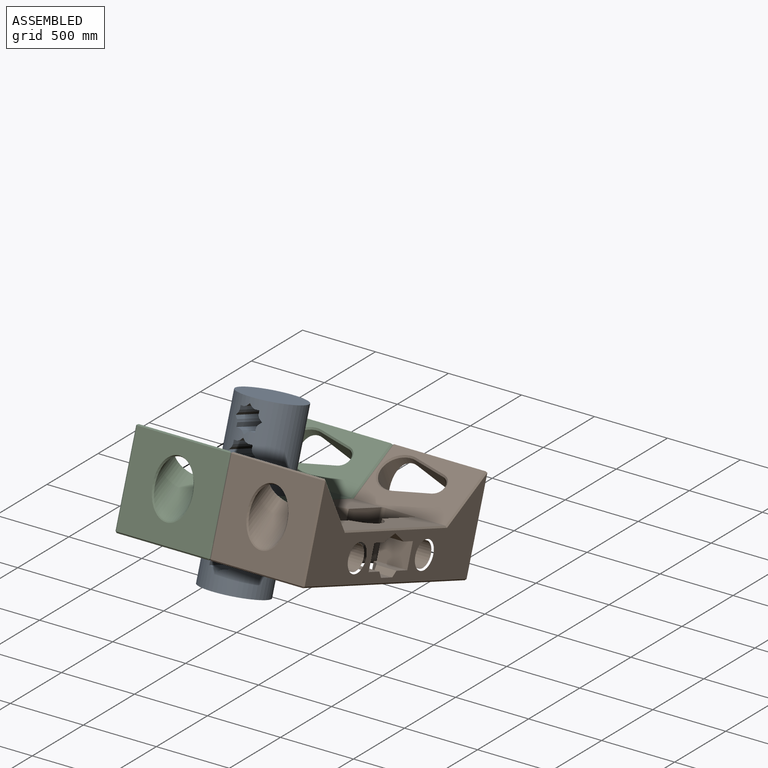
[diagram: assembled view]
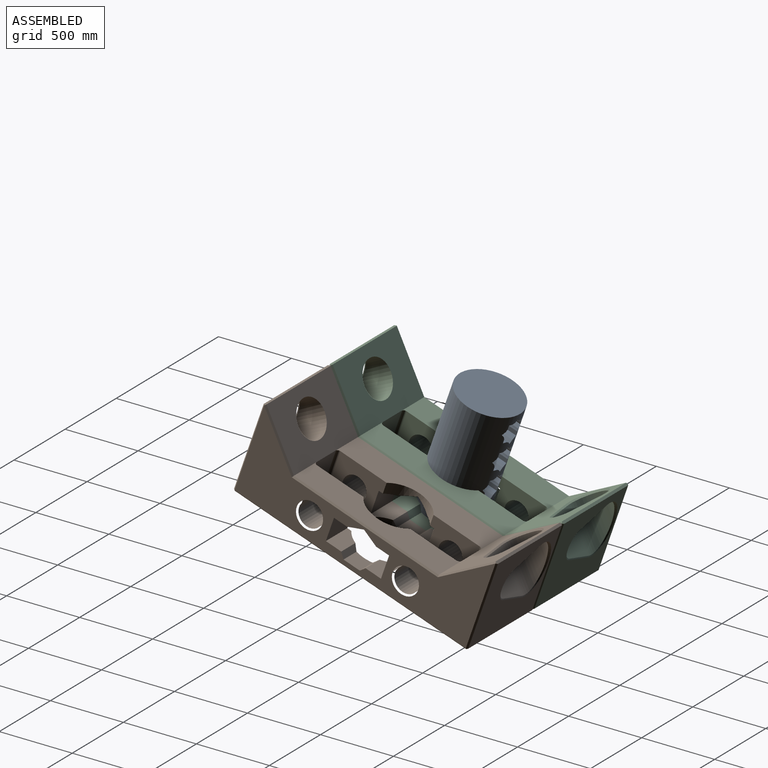
[diagram: assembled view, second angle]
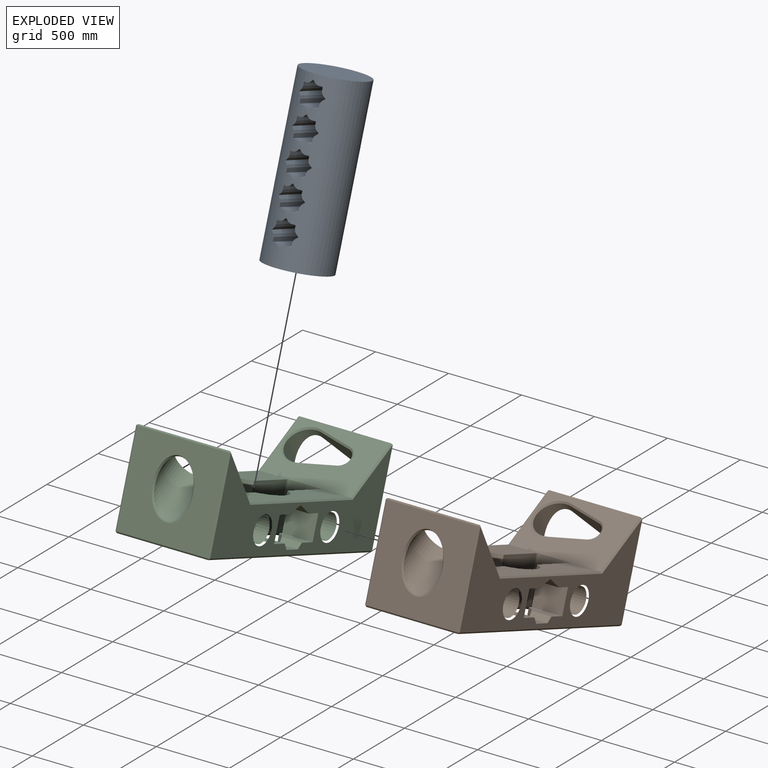
[diagram: exploded view]
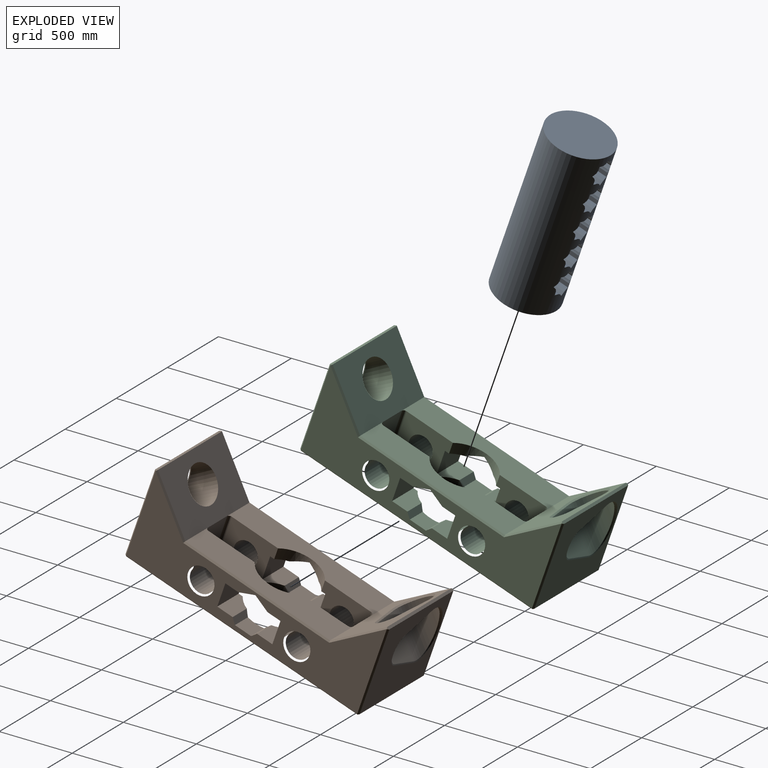
[diagram: exploded view, second angle]
ASSEMBLY  parts=3 mates=2
PART A: 123 faces, bbox 1127.2x435.2x435.2 mm
  f0: cylinder r=217.6mm len=1127.18mm, axis (-1,0,0), area 1342868.2mm2, adj f1,f2,f3,f4,f5,f6,f7,f8
  f1: cylinder r=73.36mm len=415.96mm, axis (0,1,0), area 7187.8mm2, adj f0,f76,f122
  f2: cylinder r=73.36mm len=433.38mm, axis (0,1,0), area 7497.8mm2, adj f0,f80,f119
  f3: cylinder r=73.36mm len=433.38mm, axis (0,1,0), area 7497.8mm2, adj f0,f77,f118
  f4: cylinder r=73.36mm len=415.96mm, axis (0,1,0), area 7187.8mm2, adj f0,f68,f116
  f5: cylinder r=73.36mm len=433.38mm, axis (0,1,0), area 7497.8mm2, adj f0,f72,f113
  f6: cylinder r=73.36mm len=433.38mm, axis (0,1,0), area 7497.8mm2, adj f0,f69,f112
  f7: cylinder r=73.36mm len=415.96mm, axis (0,1,0), area 7187.8mm2, adj f0,f60,f110
  f8: cylinder r=73.36mm len=433.38mm, axis (0,1,0), area 7497.8mm2, adj f0,f64,f107
  f9: cylinder r=73.36mm len=433.38mm, axis (0,1,0), area 7497.8mm2, adj f0,f61,f106
  f10: cylinder r=73.36mm len=415.96mm, axis (0,1,0), area 7187.8mm2, adj f0,f52,f104
  f11: cylinder r=73.36mm len=433.38mm, axis (0,1,0), area 7497.8mm2, adj f0,f56,f101
  f12: cylinder r=73.36mm len=433.38mm, axis (0,1,0), area 7497.8mm2, adj f0,f53,f100
  f13: cylinder r=73.36mm len=415.96mm, axis (0,1,0), area 7187.8mm2, adj f0,f49,f97
  f14: cylinder r=73.36mm len=433.38mm, axis (0,1,0), area 7497.8mm2, adj f0,f48,f95
  f15: cylinder r=73.36mm len=433.38mm, axis (0,1,0), area 7497.8mm2, adj f0,f45,f94
  f16: cylinder r=73.36mm len=415.96mm, axis (0,1,0), area 7187.6mm2, adj f0,f78,f92
  f17: cylinder r=73.36mm len=415.96mm, axis (0,1,0), area 7187.9mm2, adj f0,f79,f91
  f18: cylinder r=73.36mm len=415.96mm, axis (0,1,0), area 7187.6mm2, adj f0,f70,f90
  f19: cylinder r=73.36mm len=415.96mm, axis (0,1,0), area 7187.9mm2, adj f0,f71,f89
  f20: cylinder r=73.36mm len=415.96mm, axis (0,1,0), area 7187.6mm2, adj f0,f62,f88
  f21: cylinder r=73.36mm len=415.96mm, axis (0,1,0), area 7187.9mm2, adj f0,f63,f87
  f22: cylinder r=73.36mm len=415.96mm, axis (0,1,0), area 7187.6mm2, adj f0,f54,f86
  f23: cylinder r=73.36mm len=415.96mm, axis (0,1,0), area 7187.9mm2, adj f0,f55,f85
  f24: cylinder r=73.36mm len=415.96mm, axis (0,1,0), area 7187.9mm2, adj f0,f47,f84
  f25: cylinder r=73.36mm len=415.96mm, axis (0,1,0), area 7187.6mm2, adj f0,f46,f83
  f26: cylinder r=73.36mm len=415.96mm, axis (0,1,0), area 7187.8mm2, adj f0,f81,f121
  f27: cylinder r=73.36mm len=433.38mm, axis (0,1,0), area 7498mm2, adj f0,f82,f120
  f28: cylinder r=73.36mm len=433.38mm, axis (0,1,0), area 7497.7mm2, adj f0,f75,f117
  f29: cylinder r=73.36mm len=415.96mm, axis (0,1,0), area 7187.8mm2, adj f0,f73,f115
  f30: cylinder r=73.36mm len=433.38mm, axis (0,1,0), area 7498mm2, adj f0,f74,f114
  f31: cylinder r=73.36mm len=433.38mm, axis (0,1,0), area 7497.7mm2, adj f0,f67,f111
  f32: cylinder r=73.36mm len=415.96mm, axis (0,1,0), area 7187.8mm2, adj f0,f65,f109
  f33: cylinder r=73.36mm len=433.38mm, axis (0,1,0), area 7498mm2, adj f0,f66,f108
  f34: cylinder r=73.36mm len=433.38mm, axis (0,1,0), area 7497.7mm2, adj f0,f59,f105
  f35: cylinder r=73.36mm len=415.96mm, axis (0,1,0), area 7187.8mm2, adj f0,f57,f103
  f36: cylinder r=73.36mm len=433.38mm, axis (0,1,0), area 7498mm2, adj f0,f58,f102
  f37: cylinder r=73.36mm len=433.38mm, axis (0,1,0), area 7497.7mm2, adj f0,f51,f99
  f38: cylinder r=73.36mm len=415.96mm, axis (0,1,0), area 7187.8mm2, adj f0,f44,f98
  f39: cylinder r=73.36mm len=433.38mm, axis (0,1,0), area 7498mm2, adj f0,f50,f96
  f40: cylinder r=73.36mm len=433.38mm, axis (0,1,0), area 7497.7mm2, adj f0,f43,f93
  f41: plane 435.19x435.19mm, normal (1,0,0), area 148749.9mm2, adj f0
  f42: plane 435.19x435.19mm, normal (-1,0,0), area 148749.9mm2, adj f0
  f43: plane 429.24x28.1mm, normal (-1,0,0), area 11891.7mm2, adj f0,f40,f44
  f44: plane 415.96x28.1mm, normal (0,0,1), area 11686.7mm2, adj f0,f38,f43
  f45: plane 429.24x28.1mm, normal (-1,0,0), area 11891.7mm2, adj f0,f15,f46
  f46: plane 415.96x28.1mm, normal (0,0,-1), area 11686.7mm2, adj f0,f25,f45
  f47: plane 415.96x28.1mm, normal (0,0,-1), area 11686.7mm2, adj f0,f24,f48
  f48: plane 429.24x28.1mm, normal (1,0,0), area 11891.7mm2, adj f0,f14,f47
  f49: plane 415.96x28.1mm, normal (0,0,1), area 11686.7mm2, adj f0,f13,f50
  f50: plane 429.24x28.1mm, normal (1,0,0), area 11891.7mm2, adj f0,f39,f49
  f51: plane 429.24x28.1mm, normal (-1,0,0), area 11891.7mm2, adj f0,f37,f52
  f52: plane 415.96x28.1mm, normal (0,0,1), area 11686.7mm2, adj f0,f10,f51
  f53: plane 429.24x28.1mm, normal (-1,0,0), area 11891.7mm2, adj f0,f12,f54
  f54: plane 415.96x28.1mm, normal (0,0,-1), area 11686.7mm2, adj f0,f22,f53
  f55: plane 415.96x28.1mm, normal (0,0,-1), area 11686.7mm2, adj f0,f23,f56
  f56: plane 429.24x28.1mm, normal (1,0,0), area 11891.7mm2, adj f0,f11,f55
  f57: plane 415.96x28.1mm, normal (0,0,1), area 11686.7mm2, adj f0,f35,f58
  f58: plane 429.24x28.1mm, normal (1,0,0), area 11891.7mm2, adj f0,f36,f57
  f59: plane 429.24x28.1mm, normal (-1,0,0), area 11891.7mm2, adj f0,f34,f60
  f60: plane 415.96x28.1mm, normal (0,0,1), area 11686.7mm2, adj f0,f7,f59
  f61: plane 429.24x28.1mm, normal (-1,0,0), area 11891.7mm2, adj f0,f9,f62
  f62: plane 415.96x28.1mm, normal (0,0,-1), area 11686.7mm2, adj f0,f20,f61
  f63: plane 415.96x28.1mm, normal (0,0,-1), area 11686.7mm2, adj f0,f21,f64
  f64: plane 429.24x28.1mm, normal (1,0,0), area 11891.7mm2, adj f0,f8,f63
  f65: plane 415.96x28.1mm, normal (0,0,1), area 11686.7mm2, adj f0,f32,f66
  f66: plane 429.24x28.1mm, normal (1,0,0), area 11891.7mm2, adj f0,f33,f65
  f67: plane 429.24x28.1mm, normal (-1,0,0), area 11891.7mm2, adj f0,f31,f68
  f68: plane 415.96x28.1mm, normal (0,0,1), area 11686.7mm2, adj f0,f4,f67
  f69: plane 429.24x28.1mm, normal (-1,0,0), area 11891.7mm2, adj f0,f6,f70
  f70: plane 415.96x28.1mm, normal (0,0,-1), area 11686.7mm2, adj f0,f18,f69
  f71: plane 415.96x28.1mm, normal (0,0,-1), area 11686.7mm2, adj f0,f19,f72
  f72: plane 429.24x28.1mm, normal (1,0,0), area 11891.7mm2, adj f0,f5,f71
  f73: plane 415.96x28.1mm, normal (0,0,1), area 11686.7mm2, adj f0,f29,f74
  f74: plane 429.24x28.1mm, normal (1,0,0), area 11891.7mm2, adj f0,f30,f73
  f75: plane 429.24x28.1mm, normal (-1,0,0), area 11891.7mm2, adj f0,f28,f76
  f76: plane 415.96x28.1mm, normal (0,0,1), area 11686.7mm2, adj f0,f1,f75
  f77: plane 429.24x28.1mm, normal (-1,0,0), area 11891.7mm2, adj f0,f3,f78
  f78: plane 415.96x28.1mm, normal (0,0,-1), area 11686.7mm2, adj f0,f16,f77
  f79: plane 415.96x28.1mm, normal (0,0,-1), area 11686.7mm2, adj f0,f17,f80
  f80: plane 429.24x28.1mm, normal (1,0,0), area 11891.7mm2, adj f0,f2,f79
  f81: plane 415.96x28.1mm, normal (0,0,1), area 11686.7mm2, adj f0,f26,f82
  f82: plane 429.24x28.1mm, normal (1,0,0), area 11891.7mm2, adj f0,f27,f81
  f83: plane 411.64x19.87mm, normal (-0.71,0,-0.71), area 11353.4mm2, adj f0,f25,f84
  f84: plane 411.64x19.87mm, normal (0.71,0,-0.71), area 11353.3mm2, adj f0,f24,f83
  f85: plane 411.64x19.87mm, normal (0.71,0,-0.71), area 11353.3mm2, adj f0,f23,f86
  f86: plane 411.64x19.87mm, normal (-0.71,0,-0.71), area 11353.4mm2, adj f0,f22,f85
  f87: plane 411.64x19.87mm, normal (0.71,0,-0.71), area 11353.3mm2, adj f0,f21,f88
  f88: plane 411.64x19.87mm, normal (-0.71,0,-0.71), area 11353.4mm2, adj f0,f20,f87
  f89: plane 411.64x19.87mm, normal (0.71,0,-0.71), area 11353.3mm2, adj f0,f19,f90
  f90: plane 411.64x19.87mm, normal (-0.71,0,-0.71), area 11353.4mm2, adj f0,f18,f89
  f91: plane 411.64x19.87mm, normal (0.71,0,-0.71), area 11353.3mm2, adj f0,f17,f92
  f92: plane 411.64x19.87mm, normal (-0.71,0,-0.71), area 11353.4mm2, adj f0,f16,f91
  f93: plane 435.19x19.87mm, normal (-0.71,0,0.71), area 12210.2mm2, adj f0,f40,f94
  f94: plane 435.19x19.87mm, normal (-0.71,0,-0.71), area 12210.3mm2, adj f0,f15,f93
  f95: plane 435.19x19.87mm, normal (0.71,0,-0.71), area 12210.1mm2, adj f0,f14,f96
  f96: plane 435.19x19.87mm, normal (0.71,0,0.71), area 12210.1mm2, adj f0,f39,f95
  f97: plane 411.64x19.87mm, normal (0.71,0,0.71), area 11353.2mm2, adj f0,f13,f98
  f98: plane 411.64x19.87mm, normal (-0.71,0,0.71), area 11353.3mm2, adj f0,f38,f97
  f99: plane 435.19x19.87mm, normal (-0.71,0,0.71), area 12210.2mm2, adj f0,f37,f100
  f100: plane 435.19x19.87mm, normal (-0.71,0,-0.71), area 12210.3mm2, adj f0,f12,f99
  f101: plane 435.19x19.87mm, normal (0.71,0,-0.71), area 12210.1mm2, adj f0,f11,f102
  f102: plane 435.19x19.87mm, normal (0.71,0,0.71), area 12210.1mm2, adj f0,f36,f101
  f103: plane 411.64x19.87mm, normal (0.71,0,0.71), area 11353.2mm2, adj f0,f35,f104
  f104: plane 411.64x19.87mm, normal (-0.71,0,0.71), area 11353.3mm2, adj f0,f10,f103
  f105: plane 435.19x19.87mm, normal (-0.71,0,0.71), area 12210.2mm2, adj f0,f34,f106
  f106: plane 435.19x19.87mm, normal (-0.71,0,-0.71), area 12210.3mm2, adj f0,f9,f105
  f107: plane 435.19x19.87mm, normal (0.71,0,-0.71), area 12210.1mm2, adj f0,f8,f108
  f108: plane 435.19x19.87mm, normal (0.71,0,0.71), area 12210.1mm2, adj f0,f33,f107
  f109: plane 411.64x19.87mm, normal (0.71,0,0.71), area 11353.2mm2, adj f0,f32,f110
  f110: plane 411.64x19.87mm, normal (-0.71,0,0.71), area 11353.3mm2, adj f0,f7,f109
  f111: plane 435.19x19.87mm, normal (-0.71,0,0.71), area 12210.2mm2, adj f0,f31,f112
  f112: plane 435.19x19.87mm, normal (-0.71,0,-0.71), area 12210.3mm2, adj f0,f6,f111
  f113: plane 435.19x19.87mm, normal (0.71,0,-0.71), area 12210.1mm2, adj f0,f5,f114
  f114: plane 435.19x19.87mm, normal (0.71,0,0.71), area 12210.1mm2, adj f0,f30,f113
  f115: plane 411.64x19.87mm, normal (0.71,0,0.71), area 11353.2mm2, adj f0,f29,f116
  f116: plane 411.64x19.87mm, normal (-0.71,0,0.71), area 11353.3mm2, adj f0,f4,f115
  f117: plane 435.19x19.87mm, normal (-0.71,0,0.71), area 12210.2mm2, adj f0,f28,f118
  f118: plane 435.19x19.87mm, normal (-0.71,0,-0.71), area 12210.3mm2, adj f0,f3,f117
  f119: plane 435.19x19.87mm, normal (0.71,0,-0.71), area 12210.1mm2, adj f0,f2,f120
  f120: plane 435.19x19.87mm, normal (0.71,0,0.71), area 12210.1mm2, adj f0,f27,f119
  f121: plane 411.64x19.87mm, normal (0.71,0,0.71), area 11353.2mm2, adj f0,f26,f122
  f122: plane 411.64x19.87mm, normal (-0.71,0,0.71), area 11353.3mm2, adj f0,f1,f121
PART B: 103 faces, bbox 649.7x2052.9x632.6 mm
  f0: cylinder r=205.21mm len=340.87mm, axis (0,0,1), area 21602.9mm2, adj f1,f15,f34,f93,f94,f95,f96,f102
  f1: plane 335.26x313.85mm, normal (-1,0,0), area 78595.1mm2, adj f0,f6,f16,f22,f29,f32,f92,f96
  f2: plane 335.26x313.85mm, normal (1,0,0), area 78595.1mm2, adj f3,f12,f18,f21,f30,f39,f81,f89
  f3: cylinder r=205.21mm len=340.87mm, axis (0,0,1), area 21602.9mm2, adj f2,f19,f41,f81,f82,f83,f84,f90
  f4: plane 627.73x613.59mm, normal (0,1,0), area 255541.5mm2, adj f49,f50,f51,f52,f73,f74,f75,f76
  f5: plane 627.7x306.78mm, normal (0,-0.71,0.71), area 180694.5mm2, adj f6,f12,f17,f44,f45,f46,f47,f52
  f6: plane 1051.38x219.55mm, normal (0,0,1), area 188183mm2, adj f1,f5,f11,f15,f16,f28,f29,f62
  f7: plane 1679.08x613.56mm, normal (1,0,0), area 473543.5mm2, adj f49,f57,f58,f62,f66,f67,f77,f78
  f8: plane 1679.08x613.56mm, normal (-1,0,0), area 473543.5mm2, adj f51,f60,f61,f65,f68,f69,f79,f80
  f9: plane 1679.08x627.7mm, normal (0,0,-1), area 743592.4mm2, adj f32,f33,f34,f35,f36,f37,f38,f39
  f10: plane 627.72x613.58mm, normal (0,-1,0), area 301747.6mm2, adj f48,f59,f67,f68,f72
  f11: plane 627.7x306.78mm, normal (0,0.71,0.71), area 221657.5mm2, adj f6,f12,f13,f14,f66,f69,f72
  f12: plane 1051.38x219.55mm, normal (0,0,1), area 188183mm2, adj f2,f5,f11,f18,f19,f30,f31,f65
  f13: cylinder r=127mm len=428.42mm, axis (0,0.71,0.71), area 171202.5mm2, adj f11,f48
  f14: plane 313.85x188.6mm, normal (0,1,0), area 59192.1mm2, adj f11,f28,f31,f40
  f15: plane 335.26x313.85mm, normal (-1,0,0), area 78595.1mm2, adj f0,f6,f16,f23,f28,f36,f100,f101
  f16: cylinder r=205.21mm len=340.87mm, axis (0,0,1), area 25640.9mm2, adj f1,f6,f15,f97,f98,f99,f100
  f17: plane 313.85x188.6mm, normal (0,-1,0), area 59192.1mm2, adj f5,f29,f30,f35
  f18: cylinder r=205.21mm len=340.87mm, axis (0,0,1), area 25640.9mm2, adj f2,f12,f19,f86,f87,f88,f89
  f19: plane 335.26x313.85mm, normal (1,0,0), area 78595.1mm2, adj f3,f12,f18,f20,f31,f43,f84,f85
  f20: cylinder r=83.01mm len=199.55mm, axis (1,0,0), area 104079.4mm2, adj f19,f79
  f21: cylinder r=83.01mm len=199.55mm, axis (1,0,0), area 104079.4mm2, adj f2,f80
  f22: cylinder r=83.01mm len=199.55mm, axis (1,0,0), area 104079.4mm2, adj f1,f77
  f23: cylinder r=83.01mm len=199.55mm, axis (1,0,0), area 104079.4mm2, adj f15,f78
  f24: plane 227.99x113.32mm, normal (-0.24,-0.69,-0.69), area 17679.7mm2, adj f25,f27,f47,f76
  f25: cylinder r=125.91mm len=400.63mm, axis (0,-0.71,0.71), area 81778.1mm2, adj f24,f26,f45,f74
  f26: plane 259.78x227.99mm, normal (-0.24,0.69,0.69), area 66340.8mm2, adj f25,f27,f44,f73
  f27: cylinder r=67.53mm len=272.32mm, axis (0,-0.71,0.71), area 32052.4mm2, adj f24,f26,f46,f75
  f28: cylinder r=20mm len=313.85mm, axis (0,0,-1), area 9859.9mm2, adj f6,f14,f15,f38
  f29: cylinder r=20mm len=313.85mm, axis (0,0,1), area 9859.9mm2, adj f1,f6,f17,f33
  f30: cylinder r=20mm len=313.85mm, axis (0,0,-1), area 9859.9mm2, adj f2,f12,f17,f37
  f31: cylinder r=20mm len=313.85mm, axis (0,0,1), area 9859.9mm2, adj f12,f14,f19,f42
  f32: plane 335.35x10.1mm, normal (-0.71,0,-0.71), area 4703.9mm2, adj f1,f9,f33,f34
  f33: cone r=30mm half-angle=45deg, axis (0,0,-1), area 555.4mm2, adj f9,f29,f32,f35
  f34: cone r=205.21mm half-angle=45deg, axis (0,0,-1), area 5752.3mm2, adj f0,f9,f32,f36
  f35: plane 188.6x10mm, normal (0,-0.71,-0.71), area 2667.2mm2, adj f9,f17,f33,f37
  f36: plane 335.35x10.1mm, normal (-0.71,0,-0.71), area 4703.9mm2, adj f9,f15,f34,f38
  f37: cone r=30mm half-angle=45deg, axis (0,0,-1), area 555.4mm2, adj f9,f30,f35,f39
  f38: cone r=30mm half-angle=45deg, axis (0,0,-1), area 555.4mm2, adj f9,f28,f36,f40
  f39: plane 335.35x10.1mm, normal (0.71,0,-0.71), area 4703.9mm2, adj f2,f9,f37,f41
  f40: plane 188.6x10mm, normal (0,0.71,-0.71), area 2667.2mm2, adj f9,f14,f38,f42
  f41: cone r=205.21mm half-angle=45deg, axis (0,0,-1), area 5752.3mm2, adj f3,f9,f39,f43
  f42: cone r=30mm half-angle=45deg, axis (0,0,-1), area 555.4mm2, adj f9,f31,f40,f43
  f43: plane 335.35x10.1mm, normal (0.71,0,-0.71), area 4703.9mm2, adj f9,f19,f41,f42
  f44: plane 230.4x54mm, normal (-0.17,-0.01,0.99), area 3322.3mm2, adj f5,f26,f45,f46
  f45: cone r=125.91mm half-angle=45deg, axis (0,-0.71,0.71), area 6718.2mm2, adj f5,f25,f44,f47
  f46: cone r=67.53mm half-angle=45deg, axis (0,-0.71,0.71), area 2722.5mm2, adj f5,f27,f44,f47
  f47: plane 230.4x54mm, normal (-0.17,-0.99,0.01), area 3322.3mm2, adj f5,f24,f45,f46
  f48: bspline ~387.49x274mm, area 13962.2mm2, adj f10,f13
  f49: plane 613.56x10mm, normal (0.71,0.71,0), area 8677mm2, adj f4,f7,f53,f54
  f50: plane 627.7x10mm, normal (0,0.71,-0.71), area 8877mm2, adj f4,f9,f54,f55
  f51: plane 613.56x10mm, normal (-0.71,0.71,0), area 8677mm2, adj f4,f8,f55,f56
  f52: plane 627.7x17.07mm, normal (0,0.38,0.92), area 11598.4mm2, adj f4,f5,f53,f56
  f53: plane 17.07x10mm, normal (0.36,0.36,0.86), area 98.9mm2, adj f49,f52,f57
  f54: plane 10x10mm, normal (0.58,0.58,-0.58), area 86.6mm2, adj f49,f50,f58
  f55: plane 10x10mm, normal (-0.58,0.58,-0.58), area 86.6mm2, adj f50,f51,f60
  f56: plane 17.07x10mm, normal (-0.36,0.36,0.86), area 98.9mm2, adj f51,f52,f61
  f57: plane 316.78x313.85mm, normal (0.71,-0.5,0.5), area 6164.9mm2, adj f5,f7,f53,f62
  f58: plane 1679.08x10mm, normal (0.71,0,-0.71), area 23745.8mm2, adj f7,f9,f54,f63
  f59: plane 627.7x10mm, normal (0,-0.71,-0.71), area 8877mm2, adj f9,f10,f63,f64
  f60: plane 1679.08x10mm, normal (-0.71,0,-0.71), area 23745.8mm2, adj f8,f9,f55,f64
  f61: plane 316.78x313.85mm, normal (-0.71,-0.5,0.5), area 6164.9mm2, adj f5,f8,f56,f65
  f62: plane 1059.67x10mm, normal (0.71,0,0.71), area 14927.4mm2, adj f6,f7,f57,f66
  f63: plane 10x10mm, normal (0.58,-0.58,-0.58), area 86.6mm2, adj f58,f59,f67
  f64: plane 10x10mm, normal (-0.58,-0.58,-0.58), area 86.6mm2, adj f59,f60,f68
  f65: plane 1059.67x10mm, normal (-0.71,0,0.71), area 14927.4mm2, adj f8,f12,f61,f69
  f66: plane 316.78x313.85mm, normal (0.71,0.5,0.5), area 6164.9mm2, adj f7,f11,f62,f70
  f67: plane 613.56x10mm, normal (0.71,-0.71,0), area 8677mm2, adj f7,f10,f63,f70
  f68: plane 613.56x10mm, normal (-0.71,-0.71,0), area 8677mm2, adj f8,f10,f64,f71
  f69: plane 316.78x313.85mm, normal (-0.71,0.5,0.5), area 6164.9mm2, adj f8,f11,f65,f71
  f70: plane 17.07x10mm, normal (0.36,-0.36,0.86), area 98.9mm2, adj f66,f67,f72
  f71: plane 17.07x10mm, normal (-0.36,-0.36,0.86), area 98.9mm2, adj f68,f69,f72
  f72: plane 627.7x17.07mm, normal (0,-0.38,0.92), area 11598.4mm2, adj f10,f11,f70,f71
  f73: plane 230.4x87mm, normal (-0.13,0.92,0.37), area 1914.4mm2, adj f4,f26,f74,f75
  f74: bspline ~384.85x168.69mm, area 7767.9mm2, adj f4,f25,f73,f76
  f75: bspline ~212.8x61.24mm, area 3406.2mm2, adj f4,f27,f73,f76
  f76: plane 230.4x87mm, normal (-0.3,0.4,-0.87), area 4437.9mm2, adj f4,f24,f74,f75
  f77: cone r=83.01mm half-angle=45deg, axis (1,0,0), area 7820.4mm2, adj f7,f22
  f78: cone r=83.01mm half-angle=45deg, axis (1,0,0), area 7820.4mm2, adj f7,f23
  f79: cone r=93.01mm half-angle=45deg, axis (-1,0,0), area 7820.4mm2, adj f8,f20
  f80: cone r=93.01mm half-angle=45deg, axis (-1,0,0), area 7820.4mm2, adj f8,f21
  f81: plane 209.55x111.55mm, normal (0,0,1), area 19942.2mm2, adj f2,f3,f8,f82,f91
  f82: plane 139.24x38.02mm, normal (0,-0.78,0.62), area 6347.3mm2, adj f3,f8,f81,f83
  f83: plane 127.17x117.15mm, normal (0,0,1), area 14228.5mm2, adj f3,f8,f82,f90
  f84: plane 209.55x111.55mm, normal (0,0,1), area 19942.2mm2, adj f3,f8,f19,f85,f90
  f85: plane 209.55x168.34mm, normal (0,1,0), area 35276.1mm2, adj f8,f19,f84,f86
  f86: plane 209.55x94.45mm, normal (0,0,-1), area 17495.3mm2, adj f8,f18,f19,f85,f87
  f87: plane 149.82x107.51mm, normal (0,0.43,-0.9), area 15004.5mm2, adj f8,f18,f86,f88
  f88: plane 149.82x107.51mm, normal (0,-0.43,-0.9), area 15004.5mm2, adj f8,f18,f87,f89
  f89: plane 209.55x94.45mm, normal (0,0,-1), area 17495.3mm2, adj f2,f8,f18,f88,f91
  f90: plane 139.24x38.02mm, normal (0,0.78,0.62), area 6347.3mm2, adj f3,f8,f83,f84
  f91: plane 209.55x168.34mm, normal (0,-1,0), area 35276.1mm2, adj f2,f8,f81,f89
  f92: plane 209.55x168.34mm, normal (0,-1,0), area 35276.1mm2, adj f1,f7,f96,f97
  f93: plane 139.24x38.02mm, normal (0,0.78,0.62), area 6347.3mm2, adj f0,f7,f94,f102
  f94: plane 127.17x117.15mm, normal (0,0,1), area 14228.5mm2, adj f0,f7,f93,f95
  f95: plane 139.24x38.02mm, normal (0,-0.78,0.62), area 6347.3mm2, adj f0,f7,f94,f96
  f96: plane 209.55x111.55mm, normal (0,0,1), area 19942.2mm2, adj f0,f1,f7,f92,f95
  f97: plane 209.55x94.45mm, normal (0,0,-1), area 17495.3mm2, adj f1,f7,f16,f92,f98
  f98: plane 149.82x107.51mm, normal (0,-0.43,-0.9), area 15004.5mm2, adj f7,f16,f97,f99
  f99: plane 149.82x107.51mm, normal (0,0.43,-0.9), area 15004.5mm2, adj f7,f16,f98,f100
  f100: plane 209.55x94.45mm, normal (0,0,-1), area 17495.3mm2, adj f7,f15,f16,f99,f101
  f101: plane 209.55x168.34mm, normal (0,1,0), area 35276.1mm2, adj f7,f15,f100,f102
  f102: plane 209.55x111.55mm, normal (0,0,1), area 19942.2mm2, adj f0,f7,f15,f93,f101
PART C: same geometry as B
PLACE A rot(axis=(0.7,-0.12,-0.7),166.4deg) t=(352.86,-712.81,718.25)mm
PLACE B rot(axis=(-1,0,0),19.3deg) t=(453.31,-120.39,-388.85)mm
PLACE C rot(axis=(-1,0,0),19.3deg) t=(-194.39,-120.39,-388.85)mm
MATE planar A.f0 <-> C.f3  axis (0,0.33,0.94) through (-194.39,-561.62,-275.26)mm
MATE planar B.f8 <-> C.f7  axis (-1,0,0) through (129.46,-585.24,-342.56)mm
